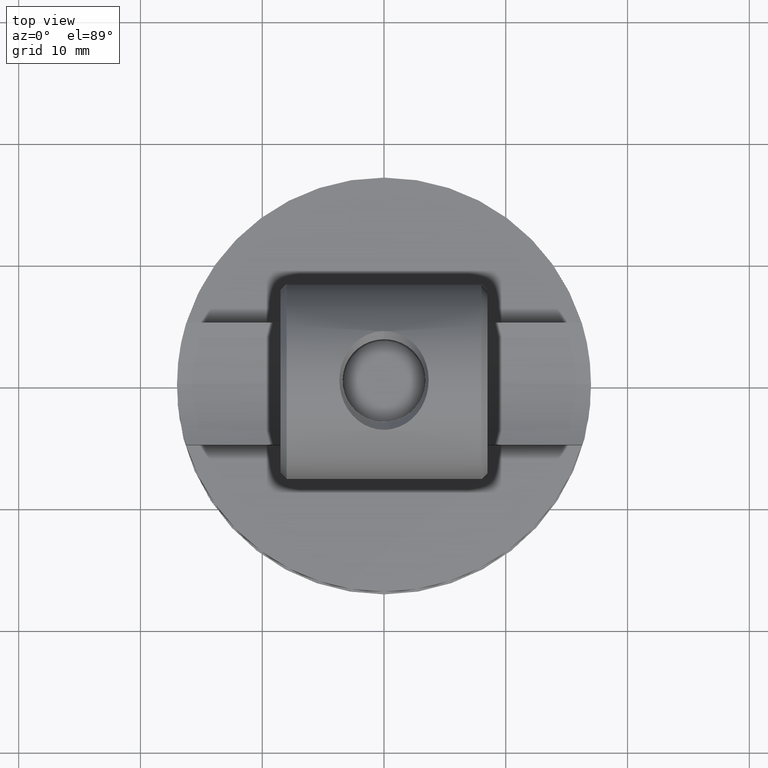
[diagram: clean part render]
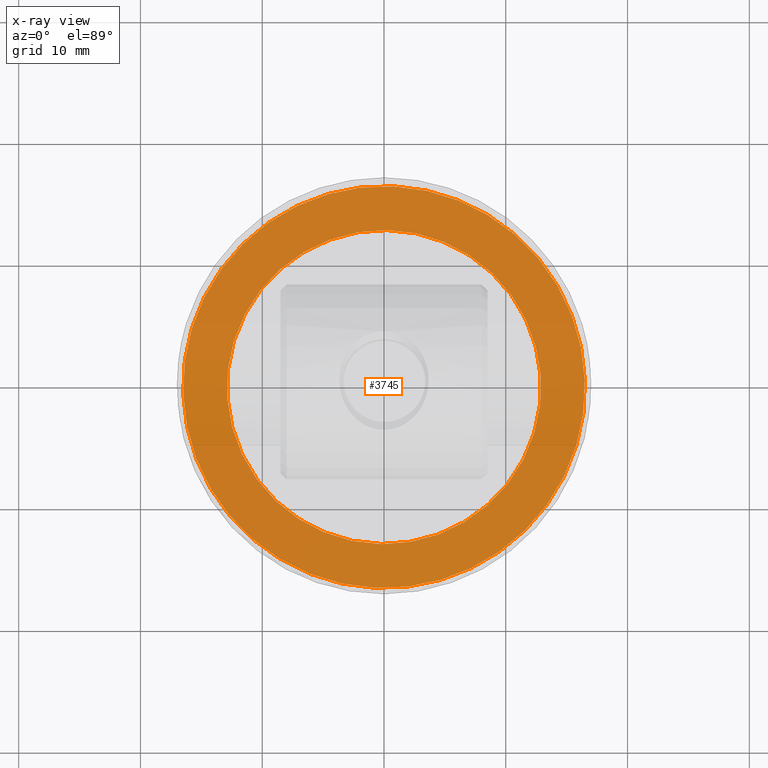
[diagram: x-ray — body ghosted, one internal face saturated and labeled with its STEP entity id]
A machine part, top view, then the same camera in x-ray: the body is ghosted and one INTERNAL B-rep face — a face not visible from any outside direction — is saturated and labeled: STEP entity #3745.
In plain terms, the highlighted planar face has unit normal (0, 0, -1).
Its self-contained STEP definition (entity closure, byte-faithful):
#86 = FACE_OUTER_BOUND ( 'NONE', #12014, .T. ) ;
#966 = CIRCLE ( 'NONE', #7708, 12.90000000000003400 ) ;
#1180 = CIRCLE ( 'NONE', #13678, 16.50000000000003600 ) ;
#2614 = CARTESIAN_POINT ( 'NONE',  ( 16.50000000000000000, 2.020667218593124000E-015, 0.0000000000000000000 ) ) ;
#2646 = CARTESIAN_POINT ( 'NONE',  ( -16.50000000000003600, 0.0000000000000000000, 0.0000000000000000000 ) ) ;
#3745 = ADVANCED_FACE ( 'NONE', ( #18932, #86 ), #17767, .T. ) ;
#6270 = DIRECTION ( 'NONE',  ( -0.0000000000000000000, -0.0000000000000000000, 1.000000000000000000 ) ) ;
#7271 = DIRECTION ( 'NONE',  ( -1.000000000000000000, 0.0000000000000000000, 0.0000000000000000000 ) ) ;
#7425 = DIRECTION ( 'NONE',  ( 0.0000000000000000000, 0.0000000000000000000, -1.000000000000000000 ) ) ;
#7454 = CARTESIAN_POINT ( 'NONE',  ( 0.0000000000000000000, 0.0000000000000000000, 0.0000000000000000000 ) ) ;
#7482 = CARTESIAN_POINT ( 'NONE',  ( -4.336808689942017700E-015, 16.50000000000005300, 0.0000000000000000000 ) ) ;
#7708 = AXIS2_PLACEMENT_3D ( 'NONE', #13271, #6270, #18479 ) ;
#7893 = CIRCLE ( 'NONE', #12281, 12.90000000000003400 ) ;
#8891 = ORIENTED_EDGE ( 'NONE', *, *, #21733, .T. ) ;
#9138 = CARTESIAN_POINT ( 'NONE',  ( 0.0000000000000000000, 0.0000000000000000000, 0.0000000000000000000 ) ) ;
#9847 = ORIENTED_EDGE ( 'NONE', *, *, #16280, .T. ) ;
#10248 = VERTEX_POINT ( 'NONE', #16571 ) ;
#10939 = DIRECTION ( 'NONE',  ( -1.000000000000000000, 0.0000000000000000000, 0.0000000000000000000 ) ) ;
#11984 = VERTEX_POINT ( 'NONE', #2614 ) ;
#12014 = EDGE_LOOP ( 'NONE', ( #18951, #9847 ) ) ;
#12228 = EDGE_CURVE ( 'NONE', #16239, #10248, #966, .T. ) ;
#12281 = AXIS2_PLACEMENT_3D ( 'NONE', #7454, #14078, #19339 ) ;
#13271 = CARTESIAN_POINT ( 'NONE',  ( 0.0000000000000000000, 0.0000000000000000000, 0.0000000000000000000 ) ) ;
#13678 = AXIS2_PLACEMENT_3D ( 'NONE', #20948, #15896, #14391 ) ;
#13978 = CARTESIAN_POINT ( 'NONE',  ( -12.90000000000003900, 0.0000000000000000000, 0.0000000000000000000 ) ) ;
#14071 = CIRCLE ( 'NONE', #15687, 16.50000000000003600 ) ;
#14078 = DIRECTION ( 'NONE',  ( -0.0000000000000000000, -0.0000000000000000000, 1.000000000000000000 ) ) ;
#14363 = AXIS2_PLACEMENT_3D ( 'NONE', #7482, #21258, #10939 ) ;
#14391 = DIRECTION ( 'NONE',  ( -1.000000000000000000, 0.0000000000000000000, 0.0000000000000000000 ) ) ;
#15228 = EDGE_CURVE ( 'NONE', #21474, #11984, #1180, .T. ) ;
#15687 = AXIS2_PLACEMENT_3D ( 'NONE', #9138, #7425, #7271 ) ;
#15896 = DIRECTION ( 'NONE',  ( 0.0000000000000000000, 0.0000000000000000000, -1.000000000000000000 ) ) ;
#16239 = VERTEX_POINT ( 'NONE', #13978 ) ;
#16280 = EDGE_CURVE ( 'NONE', #11984, #21474, #14071, .T. ) ;
#16571 = CARTESIAN_POINT ( 'NONE',  ( 12.90000000000003900, 1.579794370900083800E-015, 0.0000000000000000000 ) ) ;
#17767 = PLANE ( 'NONE',  #14363 ) ;
#18479 = DIRECTION ( 'NONE',  ( -1.000000000000000000, 0.0000000000000000000, 0.0000000000000000000 ) ) ;
#18932 = FACE_BOUND ( 'NONE', #21237, .T. ) ;
#18951 = ORIENTED_EDGE ( 'NONE', *, *, #15228, .T. ) ;
#19339 = DIRECTION ( 'NONE',  ( -1.000000000000000000, 0.0000000000000000000, 0.0000000000000000000 ) ) ;
#20048 = ORIENTED_EDGE ( 'NONE', *, *, #12228, .T. ) ;
#20948 = CARTESIAN_POINT ( 'NONE',  ( 0.0000000000000000000, 0.0000000000000000000, 0.0000000000000000000 ) ) ;
#21237 = EDGE_LOOP ( 'NONE', ( #20048, #8891 ) ) ;
#21258 = DIRECTION ( 'NONE',  ( 0.0000000000000000000, 0.0000000000000000000, -1.000000000000000000 ) ) ;
#21474 = VERTEX_POINT ( 'NONE', #2646 ) ;
#21733 = EDGE_CURVE ( 'NONE', #10248, #16239, #7893, .T. ) ;